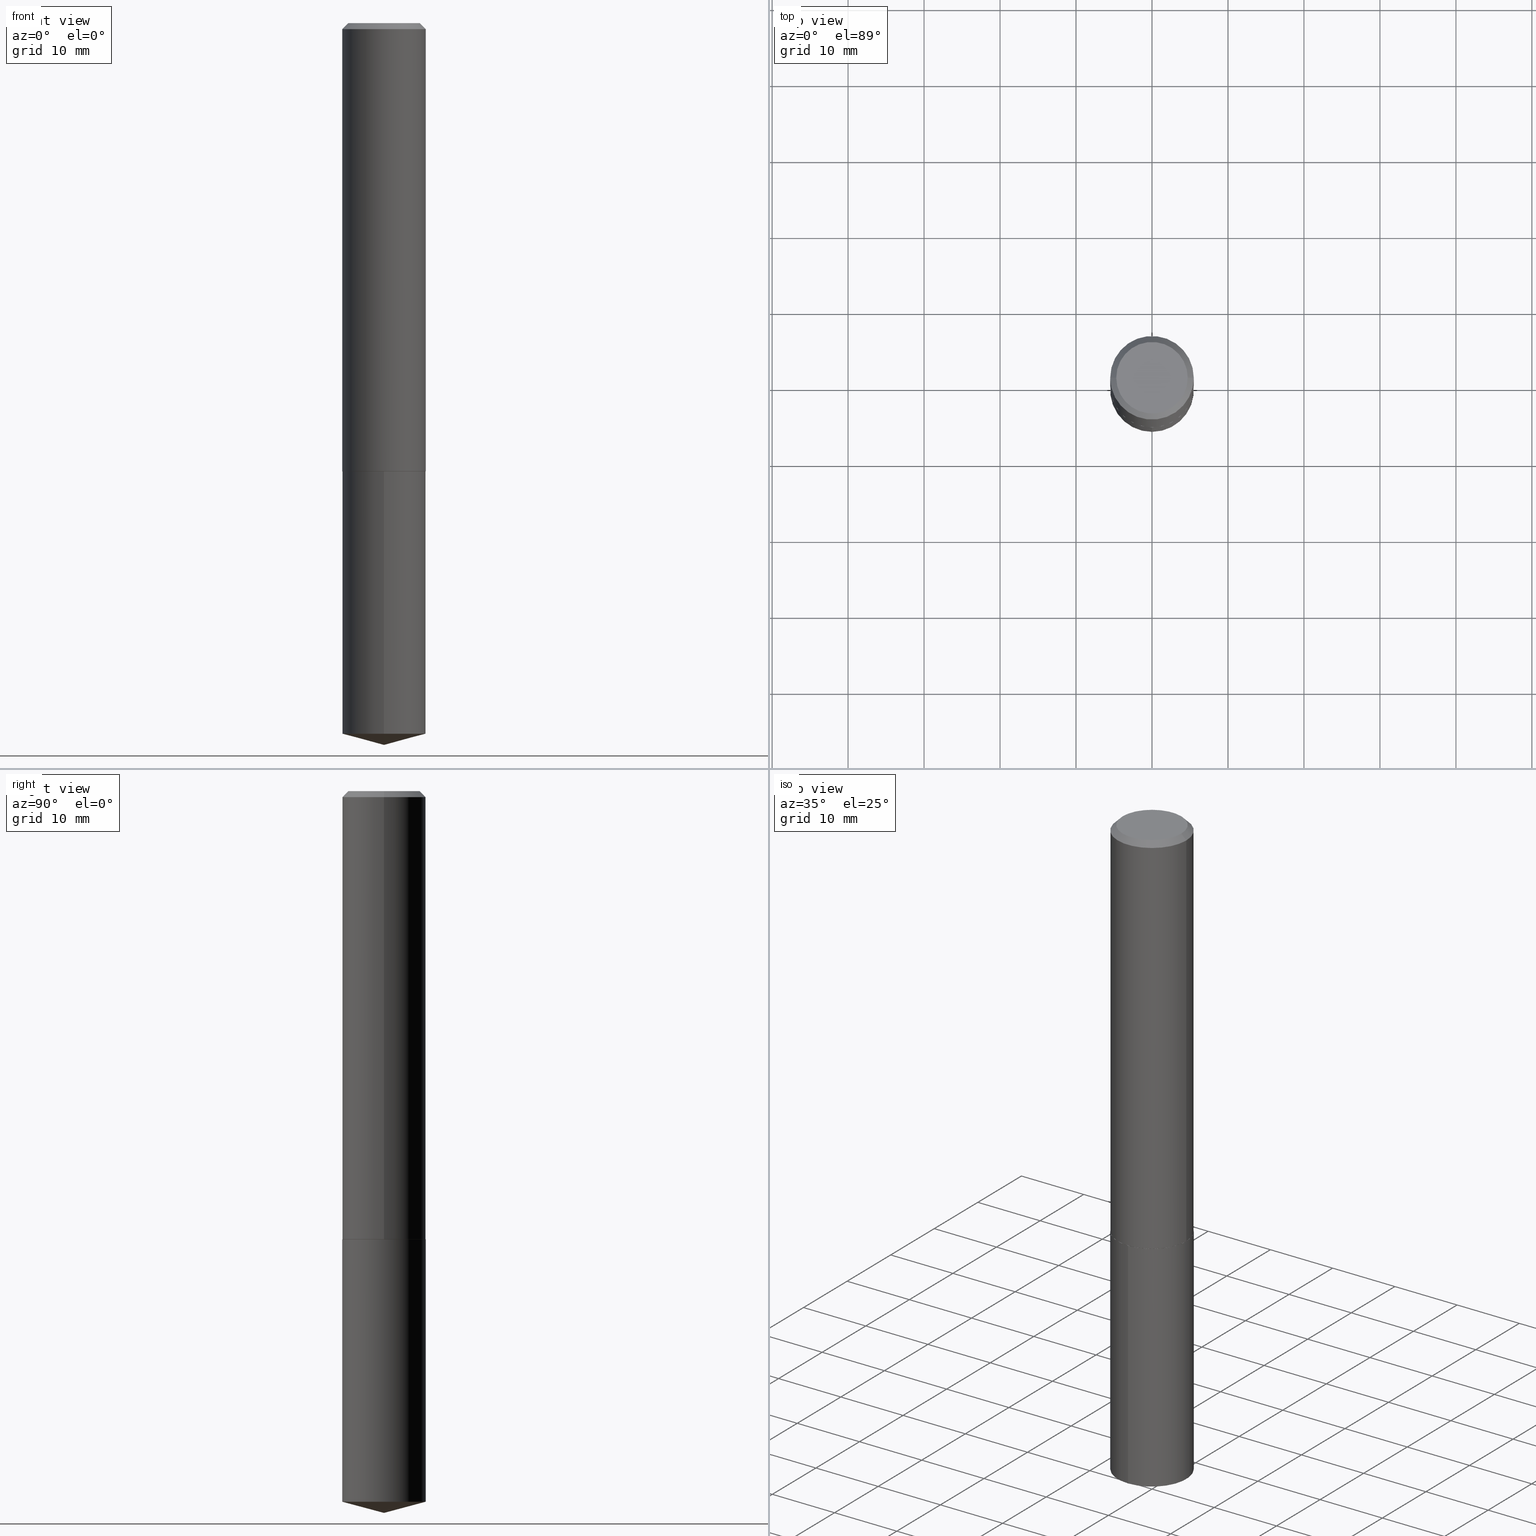
[diagram: canonical four-view strip — front | top / right | iso, engineering-drawing reading convention]
A machine part, canonical four-view strip (front | top / right | iso — engineering-drawing reading convention). The complete STEP part file that produces these views, byte-faithful:
ISO-10303-21;
HEADER;
FILE_DESCRIPTION (( 'STEP AP203' ),
    '1' );
FILE_NAME ('69042.STEP',
    '2024-04-23T14:36:10',
    ( '' ),
    ( '' ),
    'SwSTEP 2.0',
    'SolidWorks 2023',
    '' );
FILE_SCHEMA (( 'CONFIG_CONTROL_DESIGN' ));
ENDSEC;

DATA;
#1 =( NAMED_UNIT ( * ) SI_UNIT ( $, .STERADIAN. ) SOLID_ANGLE_UNIT ( ) );
#2 = VERTEX_POINT ( 'NONE', #130 ) ;
#3 = ADVANCED_FACE ( 'NONE', ( #308 ), #347, .F. ) ;
#4 = CYLINDRICAL_SURFACE ( 'NONE', #379, 0.2165500000000000203 ) ;
#5 = ORIENTED_EDGE ( 'NONE', *, *, #24, .F. ) ;
#6 = CLOSED_SHELL ( 'NONE', ( #263, #58, #289, #17, #227 ) ) ;
#7 = AXIS2_PLACEMENT_3D ( 'NONE', #134, #383, #108 ) ;
#8 = COORDINATED_UNIVERSAL_TIME_OFFSET ( 5, 0, .BEHIND. ) ;
#9 = ORIENTED_EDGE ( 'NONE', *, *, #22, .F. ) ;
#10 = PERSON_AND_ORGANIZATION ( #93, #179 ) ;
#11 = FACE_OUTER_BOUND ( 'NONE', #233, .T. ) ;
#12 = DATE_AND_TIME ( #44, #350 ) ;
#13 = CLOSED_SHELL ( 'NONE', ( #92, #319, #240, #163, #191, #66, #43, #3 ) ) ;
#14 = VERTEX_POINT ( 'NONE', #153 ) ;
#15 = APPROVAL_STATUS ( 'not_yet_approved' ) ;
#16 = DIRECTION ( 'NONE',  ( -2.445468806185136597E-29, 3.491481338843145583E-15, 1.000000000000000000 ) ) ;
#17 = ADVANCED_FACE ( 'NONE', ( #192 ), #374, .T. ) ;
#18 = ORIENTED_EDGE ( 'NONE', *, *, #22, .T. ) ;
#19 = CIRCLE ( 'NONE', #228, 0.2160500000000008247 ) ;
#20 = CIRCLE ( 'NONE', #147, 0.1852999999999999925 ) ;
#21 = DIRECTION ( 'NONE',  ( -2.445468806185136597E-29, 3.491481338843145583E-15, 1.000000000000000000 ) ) ;
#22 = EDGE_CURVE ( 'NONE', #359, #69, #214, .T. ) ;
#23 = DIRECTION ( 'NONE',  ( 1.000000000000000000, -6.982962677686269866E-15, 0.000000000000000000 ) ) ;
#24 = EDGE_CURVE ( 'NONE', #235, #65, #19, .T. ) ;
#25 = CARTESIAN_POINT ( 'NONE',  ( 5.680579489887453942E-29, -8.110362001998743924E-15, -2.322900000000000187 ) ) ;
#26 = ORIENTED_EDGE ( 'NONE', *, *, #253, .T. ) ;
#27 = VECTOR ( 'NONE', #322, 39.37007874015748143 ) ;
#28 = DIRECTION ( 'NONE',  ( -2.445468806185136597E-29, 3.491481338843145583E-15, 1.000000000000000000 ) ) ;
#29 = ORIENTED_EDGE ( 'NONE', *, *, #321, .T. ) ;
#30 = EDGE_CURVE ( 'NONE', #2, #232, #378, .T. ) ;
#31 = DIRECTION ( 'NONE',  ( -6.982962677686265133E-15, -1.000000000000000000, 2.523064413451178124E-15 ) ) ;
#32 = ORIENTED_EDGE ( 'NONE', *, *, #303, .F. ) ;
#33 = DIRECTION ( 'NONE',  ( 0.7071067811864267805, -2.468850131080992517E-15, 0.7071067811866682540 ) ) ;
#34 = ORIENTED_EDGE ( 'NONE', *, *, #380, .F. ) ;
#35 = CALENDAR_DATE ( 2024, 23, 4 ) ;
#36 = CIRCLE ( 'NONE', #231, 0.2160500000000008247 ) ;
#37 = ORIENTED_EDGE ( 'NONE', *, *, #348, .T. ) ;
#38 = SECURITY_CLASSIFICATION_LEVEL ( 'unclassified' ) ;
#39 = ORIENTED_EDGE ( 'NONE', *, *, #217, .T. ) ;
#40 = ORIENTED_EDGE ( 'NONE', *, *, #97, .F. ) ;
#41 = CARTESIAN_POINT ( 'NONE',  ( 5.680579489887453942E-29, -8.110362001998742346E-15, -2.322900000000000187 ) ) ;
#42 = VECTOR ( 'NONE', #389, 39.37007874015748143 ) ;
#43 = ADVANCED_FACE ( 'NONE', ( #311 ), #89, .T. ) ;
#44 = CALENDAR_DATE ( 2024, 23, 4 ) ;
#45 = CARTESIAN_POINT ( 'NONE',  ( 0.2160500000000008247, -9.619031088512866473E-15, -2.322900000000000187 ) ) ;
#46 = CARTESIAN_POINT ( 'NONE',  ( 5.679356755484362262E-29, -8.108616261329323209E-15, -2.322400000000000464 ) ) ;
#47 = APPLICATION_CONTEXT ( 'configuration controlled 3d designs of mechanical parts and assemblies' ) ;
#48 = CARTESIAN_POINT ( 'NONE',  ( 7.642090019328598283E-31, -1.091087918388489651E-16, -0.03125000000000019429 ) ) ;
#49 = FACE_OUTER_BOUND ( 'NONE', #239, .T. ) ;
#50 = DIRECTION ( 'NONE',  ( 1.000000000000000000, -6.982962677686269866E-15, 0.000000000000000000 ) ) ;
#51 = EDGE_CURVE ( 'NONE', #183, #341, #172, .T. ) ;
#52 = CARTESIAN_POINT ( 'NONE',  ( 1.538680294288586829E-15, 0.2165499999999918879, -2.322900000000001075 ) ) ;
#53 = AXIS2_PLACEMENT_3D ( 'NONE', #246, #276, #71 ) ;
#54 = CC_DESIGN_APPROVAL ( #351, ( #270 ) ) ;
#55 = LINE ( 'NONE', #114, #255 ) ;
#56 = DIRECTION ( 'NONE',  ( 1.000000000000000000, -6.982962677686262766E-15, 0.000000000000000000 ) ) ;
#57 = ORIENTED_EDGE ( 'NONE', *, *, #51, .F. ) ;
#58 = ADVANCED_FACE ( 'NONE', ( #315 ), #219, .T. ) ;
#59 =( NAMED_UNIT ( * ) PLANE_ANGLE_UNIT ( ) SI_UNIT ( $, .RADIAN. ) );
#60 = ORIENTED_EDGE ( 'NONE', *, *, #24, .T. ) ;
#61 = DIRECTION ( 'NONE',  ( 1.000000000000000000, -6.982962677686269866E-15, 0.000000000000000000 ) ) ;
#62 = CARTESIAN_POINT ( 'NONE',  ( 5.680579489887453942E-29, -8.110362001998743924E-15, -2.322900000000000187 ) ) ;
#63 = VERTEX_POINT ( 'NONE', #274 ) ;
#64 = MECHANICAL_CONTEXT ( 'NONE', #330, 'mechanical' ) ;
#65 = VERTEX_POINT ( 'NONE', #45 ) ;
#66 = ADVANCED_FACE ( 'NONE', ( #11 ), #241, .T. ) ;
#67 = CONICAL_SURFACE ( 'NONE', #133, 0.2165500000000002701, 0.7853981633972775267 ) ;
#68 = APPROVAL_DATE_TIME ( #157, #339 ) ;
#69 = VERTEX_POINT ( 'NONE', #369 ) ;
#70 = PERSON_AND_ORGANIZATION ( #93, #179 ) ;
#71 = DIRECTION ( 'NONE',  ( -6.982962677686266711E-15, -1.000000000000000000, 3.510303681827571802E-15 ) ) ;
#72 = PERSON_AND_ORGANIZATION ( #93, #179 ) ;
#73 = ORIENTED_EDGE ( 'NONE', *, *, #186, .F. ) ;
#74 = AXIS2_PLACEMENT_3D ( 'NONE', #121, #211, #156 ) ;
#75 = DIRECTION ( 'NONE',  ( -6.982962677686265133E-15, -1.000000000000000000, 3.784596620176766988E-15 ) ) ;
#76 = CIRCLE ( 'NONE', #82, 0.2165500000000000203 ) ;
#77 = DIRECTION ( 'NONE',  ( -1.000000000000000000, 6.982962677686265922E-15, -4.876176775795935793E-29 ) ) ;
#78 = CARTESIAN_POINT ( 'NONE',  ( 5.679356755484362262E-29, -8.108616261329323209E-15, -2.322400000000000464 ) ) ;
#79 = EDGE_CURVE ( 'NONE', #232, #101, #215, .T. ) ;
#80 = DIRECTION ( 'NONE',  ( -2.445468806185136877E-29, 3.491481338843145188E-15, 1.000000000000000000 ) ) ;
#81 = CARTESIAN_POINT ( 'NONE',  ( 0.2165500000000002701, -9.620776829182285610E-15, -2.322400000000000464 ) ) ;
#82 = AXIS2_PLACEMENT_3D ( 'NONE', #355, #176, #292 ) ;
#83 = CARTESIAN_POINT ( 'NONE',  ( 5.680579489887453942E-29, -8.110362001998742346E-15, -2.322900000000000187 ) ) ;
#84 = ORIENTED_EDGE ( 'NONE', *, *, #159, .T. ) ;
#85 = CC_DESIGN_PERSON_AND_ORGANIZATION_ASSIGNMENT ( #70, #155, ( #297 ) ) ;
#86 = VERTEX_POINT ( 'NONE', #320 ) ;
#87 = LINE ( 'NONE', #229, #42 ) ;
#88 = ORIENTED_EDGE ( 'NONE', *, *, #186, .T. ) ;
#89 = CONICAL_SURFACE ( 'NONE', #74, 0.2165500000000000203, 0.7853981633974453924 ) ;
#90 = CARTESIAN_POINT ( 'NONE',  ( 9.004812934248602542E-29, -1.285600773338433717E-14, -3.682175602379041734 ) ) ;
#91 = DIRECTION ( 'NONE',  ( -0.7071067811864267805, 7.493145998869918709E-15, 0.7071067811866682540 ) ) ;
#92 = ADVANCED_FACE ( 'NONE', ( #49 ), #260, .T. ) ;
#93 = PERSON ( 'UNSPECIFIED', 'UNSPECIFIED', 'UNSPECIFIED', ('UNSPECIFIED'), ('UNSPECIFIED'), ('UNSPECIFIED') ) ;
#94 = APPROVAL_STATUS ( 'not_yet_approved' ) ;
#95 = ORIENTED_EDGE ( 'NONE', *, *, #79, .T. ) ;
#96 = DIRECTION ( 'NONE',  ( -2.445591930395119820E-29, 3.491305017966654649E-15, 1.000000000000000000 ) ) ;
#97 = EDGE_CURVE ( 'NONE', #232, #2, #336, .T. ) ;
#98 = DATE_TIME_ROLE ( 'classification_date' ) ;
#99 = ORIENTED_EDGE ( 'NONE', *, *, #321, .F. ) ;
#100 = DIRECTION ( 'NONE',  ( 0.000000000000000000, 0.000000000000000000, 1.000000000000000000 ) ) ;
#101 = VERTEX_POINT ( 'NONE', #252 ) ;
#102 = AXIS2_PLACEMENT_3D ( 'NONE', #310, #16, #128 ) ;
#103 = EDGE_LOOP ( 'NONE', ( #113, #88 ) ) ;
#104 = CC_DESIGN_APPROVAL ( #137, ( #364 ) ) ;
#105 = LINE ( 'NONE', #222, #313 ) ;
#106 = CARTESIAN_POINT ( 'NONE',  ( -1.182960040634177403E-47, 1.688953421129294899E-33, 4.837354856632018279E-19 ) ) ;
#107 = FACE_OUTER_BOUND ( 'NONE', #299, .T. ) ;
#108 = DIRECTION ( 'NONE',  ( 6.982962677686265922E-15, 1.000000000000000000, -3.491305017966654254E-15 ) ) ;
#109 = DIRECTION ( 'NONE',  ( -2.445591930395119820E-29, 3.491305017966654649E-15, 1.000000000000000000 ) ) ;
#110 = EDGE_LOOP ( 'NONE', ( #365, #390, #386, #57 ) ) ;
#111 = CIRCLE ( 'NONE', #283, 0.2165500000000000203 ) ;
#112 = DIRECTION ( 'NONE',  ( -2.445591930395119820E-29, 3.491305017966654254E-15, 1.000000000000000000 ) ) ;
#113 = ORIENTED_EDGE ( 'NONE', *, *, #124, .T. ) ;
#114 = CARTESIAN_POINT ( 'NONE',  ( 9.146430927609087428E-29, -1.305899817972688268E-14, -3.740200000000000191 ) ) ;
#115 = ORIENTED_EDGE ( 'NONE', *, *, #360, .F. ) ;
#116 = LINE ( 'NONE', #301, #213 ) ;
#117 = ORIENTED_EDGE ( 'NONE', *, *, #167, .F. ) ;
#118 = APPROVAL_PERSON_ORGANIZATION ( #342, #339, #271 ) ;
#119 = CC_DESIGN_PERSON_AND_ORGANIZATION_ASSIGNMENT ( #182, #340, ( #270 ) ) ;
#120 =( LENGTH_UNIT ( ) NAMED_UNIT ( * ) SI_UNIT ( $, .METRE. ) );
#121 = CARTESIAN_POINT ( 'NONE',  ( 7.642090019328598283E-31, -1.091087918388489651E-16, -0.03125000000000019429 ) ) ;
#122 = DATE_AND_TIME ( #307, #269 ) ;
#123 = ORIENTED_EDGE ( 'NONE', *, *, #150, .T. ) ;
#124 = EDGE_CURVE ( 'NONE', #86, #287, #278, .T. ) ;
#125 = CC_DESIGN_APPROVAL ( #339, ( #195 ) ) ;
#126 = COORDINATED_UNIVERSAL_TIME_OFFSET ( 5, 0, .BEHIND. ) ;
#127 = DIRECTION ( 'NONE',  ( 1.000000000000000000, -6.982962677686266711E-15, 4.876176775795936353E-29 ) ) ;
#128 = DIRECTION ( 'NONE',  ( 1.000000000000000000, -6.982962677686269866E-15, 0.000000000000000000 ) ) ;
#129 = COORDINATED_UNIVERSAL_TIME_OFFSET ( 5, 0, .BEHIND. ) ;
#130 = CARTESIAN_POINT ( 'NONE',  ( -0.2165500000000002701, -6.569935967040822957E-15, -2.322400000000000464 ) ) ;
#131 = MANIFOLD_SOLID_BREP ( 'Body-Move/Copy2[1]', #6 ) ;
#132 = DIRECTION ( 'NONE',  ( 2.445468806185136597E-29, -3.491481338843145583E-15, -1.000000000000000000 ) ) ;
#133 = AXIS2_PLACEMENT_3D ( 'NONE', #46, #28, #61 ) ;
#134 = CARTESIAN_POINT ( 'NONE',  ( 5.680579489887453942E-29, -8.110362001998743924E-15, -2.322900000000000187 ) ) ;
#135 = MANIFOLD_SOLID_BREP ( 'Body-Move/Copy2[2]', #13 ) ;
#136 = DIRECTION ( 'NONE',  ( -2.445468806185136597E-29, 3.491481338843145583E-15, 1.000000000000000000 ) ) ;
#137 = APPROVAL ( #247, 'UNSPECIFIED' ) ;
#138 = FACE_OUTER_BOUND ( 'NONE', #139, .T. ) ;
#139 = EDGE_LOOP ( 'NONE', ( #9, #29, #115 ) ) ;
#140 = VECTOR ( 'NONE', #112, 39.37007874015748143 ) ;
#141 = CYLINDRICAL_SURFACE ( 'NONE', #329, 0.2165500000000001590 ) ;
#142 = ORIENTED_EDGE ( 'NONE', *, *, #217, .F. ) ;
#143 = FACE_OUTER_BOUND ( 'NONE', #371, .T. ) ;
#144 = ORIENTED_EDGE ( 'NONE', *, *, #30, .F. ) ;
#145 = CC_DESIGN_DATE_AND_TIME_ASSIGNMENT ( #216, #344, ( #270 ) ) ;
#146 = CARTESIAN_POINT ( 'NONE',  ( 0.1852999999999999925, -1.432999956121669510E-15, 4.837354856727365293E-19 ) ) ;
#147 = AXIS2_PLACEMENT_3D ( 'NONE', #196, #21, #226 ) ;
#148 = CALENDAR_DATE ( 2024, 23, 4 ) ;
#149 = DIRECTION ( 'NONE',  ( 6.863315791527699781E-15, 0.9659258262890704216, 0.2588190451025125793 ) ) ;
#150 = EDGE_CURVE ( 'NONE', #14, #101, #166, .T. ) ;
#151 = ORIENTED_EDGE ( 'NONE', *, *, #30, .T. ) ;
#152 = APPROVAL_DATE_TIME ( #209, #351 ) ;
#153 = CARTESIAN_POINT ( 'NONE',  ( -0.2165500000000000203, -2.570182232295586298E-15, -0.03125000000000019429 ) ) ;
#154 = AXIS2_PLACEMENT_3D ( 'NONE', #382, #223, #352 ) ;
#155 = PERSON_AND_ORGANIZATION_ROLE ( 'design_owner' ) ;
#156 = DIRECTION ( 'NONE',  ( -1.000000000000000000, 6.982962677686266711E-15, 0.000000000000000000 ) ) ;
#157 = DATE_AND_TIME ( #273, #295 ) ;
#158 = CARTESIAN_POINT ( 'NONE',  ( 0.000000000000000000, 0.000000000000000000, 0.000000000000000000 ) ) ;
#159 = EDGE_CURVE ( 'NONE', #69, #183, #288, .T. ) ;
#160 = CONICAL_SURFACE ( 'NONE', #381, 0.2165500000000002701, 0.7853981633972775267 ) ;
#161 = DIRECTION ( 'NONE',  ( -1.000000000000000000, 6.982962677686266711E-15, 0.000000000000000000 ) ) ;
#162 = FACE_OUTER_BOUND ( 'NONE', #361, .T. ) ;
#163 = ADVANCED_FACE ( 'NONE', ( #107 ), #250, .F. ) ;
#164 = DIRECTION ( 'NONE',  ( 1.000000000000000000, -6.982962677686266711E-15, 4.876177403239504402E-29 ) ) ;
#165 = CARTESIAN_POINT ( 'NONE',  ( -0.2165500000000001590, 1.538680294288498082E-15, -1.065195393794700623E-29 ) ) ;
#166 = CIRCLE ( 'NONE', #154, 0.2165500000000000203 ) ;
#167 = EDGE_CURVE ( 'NONE', #86, #14, #105, .T. ) ;
#168 = CARTESIAN_POINT ( 'NONE',  ( -0.2165500000000002701, -6.569935967040822957E-15, -2.322400000000000464 ) ) ;
#169 = EDGE_LOOP ( 'NONE', ( #99, #18, #181 ) ) ;
#170 = DIRECTION ( 'NONE',  ( -6.982962677686266711E-15, -1.000000000000000000, 3.510303681827571802E-15 ) ) ;
#171 = ORIENTED_EDGE ( 'NONE', *, *, #376, .T. ) ;
#172 = CIRCLE ( 'NONE', #312, 0.2165500000000000203 ) ;
#173 = CC_DESIGN_SECURITY_CLASSIFICATION ( #364, ( #195 ) ) ;
#174 = CARTESIAN_POINT ( 'NONE',  ( 0.000000000000000000, 0.000000000000000000, 0.000000000000000000 ) ) ;
#175 = ORIENTED_EDGE ( 'NONE', *, *, #331, .T. ) ;
#176 = DIRECTION ( 'NONE',  ( -2.445468806185136597E-29, 3.491481338843145583E-15, 1.000000000000000000 ) ) ;
#177 = APPROVAL_ROLE ( '' ) ;
#178 = ORIENTED_EDGE ( 'NONE', *, *, #385, .T. ) ;
#179 = ORGANIZATION ( 'UNSPECIFIED', 'UNSPECIFIED', '' ) ;
#180 = PERSON_AND_ORGANIZATION_ROLE ( 'design_supplier' ) ;
#181 = ORIENTED_EDGE ( 'NONE', *, *, #331, .F. ) ;
#182 = PERSON_AND_ORGANIZATION ( #93, #179 ) ;
#183 = VERTEX_POINT ( 'NONE', #52 ) ;
#184 = APPROVAL_ROLE ( '' ) ;
#185 = CARTESIAN_POINT ( 'NONE',  ( 0.2165500000000001590, -1.512160567852962203E-15, 1.055936080798610736E-29 ) ) ;
#186 = EDGE_CURVE ( 'NONE', #287, #86, #20, .T. ) ;
#187 = AXIS2_PLACEMENT_3D ( 'NONE', #48, #132, #161 ) ;
#188 = AXIS2_PLACEMENT_3D ( 'NONE', #353, #349, #317 ) ;
#189 = PERSON_AND_ORGANIZATION_ROLE ( 'creator' ) ;
#190 = DIRECTION ( 'NONE',  ( -6.982962677686265133E-15, -1.000000000000000000, 3.784596620176766988E-15 ) ) ;
#191 = ADVANCED_FACE ( 'NONE', ( #162 ), #160, .T. ) ;
#192 = FACE_OUTER_BOUND ( 'NONE', #110, .T. ) ;
#193 = DIRECTION ( 'NONE',  ( -2.445468806185136877E-29, 3.491481338843145188E-15, 1.000000000000000000 ) ) ;
#194 = VECTOR ( 'NONE', #149, 39.37007874015749564 ) ;
#195 = PRODUCT_DEFINITION_FORMATION_WITH_SPECIFIED_SOURCE ( 'ANY', '', #297, .NOT_KNOWN. ) ;
#196 = CARTESIAN_POINT ( 'NONE',  ( -1.182960040634177403E-47, 1.688953421129294899E-33, 4.837354856632018279E-19 ) ) ;
#197 = DIRECTION ( 'NONE',  ( -2.445468806185136597E-29, 3.491481338843145583E-15, 1.000000000000000000 ) ) ;
#198 = FACE_OUTER_BOUND ( 'NONE', #367, .T. ) ;
#199 = VECTOR ( 'NONE', #91, 39.37007874015748143 ) ;
#200 = CC_DESIGN_PERSON_AND_ORGANIZATION_ASSIGNMENT ( #243, #180, ( #195 ) ) ;
#201 = LINE ( 'NONE', #168, #199 ) ;
#202 = ORIENTED_EDGE ( 'NONE', *, *, #167, .T. ) ;
#203 = FACE_OUTER_BOUND ( 'NONE', #208, .T. ) ;
#204 = PRODUCT_DEFINITION_SHAPE ( 'NONE', 'NONE',  #270 ) ;
#205 = CC_DESIGN_DATE_AND_TIME_ASSIGNMENT ( #122, #98, ( #364 ) ) ;
#206 = DIRECTION ( 'NONE',  ( -6.982962677686265133E-15, -1.000000000000000000, 3.784596620176766988E-15 ) ) ;
#207 = DIRECTION ( 'NONE',  ( -6.982962677686265133E-15, -1.000000000000000000, 2.523064413451178124E-15 ) ) ;
#208 = EDGE_LOOP ( 'NONE', ( #175, #84, #335, #34 ) ) ;
#209 = DATE_AND_TIME ( #35, #290 ) ;
#210 = DIRECTION ( 'NONE',  ( 1.000000000000000000, 0.000000000000000000, 0.000000000000000000 ) ) ;
#211 = DIRECTION ( 'NONE',  ( 2.445468806185136597E-29, -3.491481338843145583E-15, -1.000000000000000000 ) ) ;
#212 = AXIS2_PLACEMENT_3D ( 'NONE', #158, #248, #127 ) ;
#213 = VECTOR ( 'NONE', #33, 39.37007874015748143 ) ;
#214 = LINE ( 'NONE', #316, #194 ) ;
#215 = LINE ( 'NONE', #185, #282 ) ;
#216 = DATE_AND_TIME ( #148, #306 ) ;
#217 = EDGE_CURVE ( 'NONE', #2, #14, #256, .T. ) ;
#218 = CARTESIAN_POINT ( 'NONE',  ( 5.680579489887453942E-29, -8.110362001998743924E-15, -2.322900000000000187 ) ) ;
#219 = CONICAL_SURFACE ( 'NONE', #53, 146.9311341562578832, 1.308996938995752091 ) ;
#220 = CONICAL_SURFACE ( 'NONE', #388, 146.9311341562578832, 1.308996938995752091 ) ;
#221 = DIRECTION ( 'NONE',  ( 2.438088387897960049E-29, -3.491481338843145188E-15, -1.000000000000000000 ) ) ;
#222 = CARTESIAN_POINT ( 'NONE',  ( -0.2165500000000000203, 1.403051776014112116E-15, -0.03125000000000019429 ) ) ;
#223 = DIRECTION ( 'NONE',  ( -2.445468806185136597E-29, 3.491481338843145583E-15, 1.000000000000000000 ) ) ;
#224 = CARTESIAN_POINT ( 'NONE',  ( 1.538680294288553500E-15, 0.2165499999999918879, -2.322900000000001075 ) ) ;
#225 = DIRECTION ( 'NONE',  ( -0.7071067811865454633, 2.468850131082235367E-15, -0.7071067811865495711 ) ) ;
#226 = DIRECTION ( 'NONE',  ( 1.000000000000000000, -6.982962677686266711E-15, 4.876177403239504402E-29 ) ) ;
#227 = ADVANCED_FACE ( 'NONE', ( #291 ), #257, .F. ) ;
#228 = AXIS2_PLACEMENT_3D ( 'NONE', #41, #244, #280 ) ;
#229 = CARTESIAN_POINT ( 'NONE',  ( 0.2165500000000000203, -1.594749633256274438E-15, -0.03125000000000019429 ) ) ;
#230 = AXIS2_PLACEMENT_3D ( 'NONE', #106, #197, #164 ) ;
#231 = AXIS2_PLACEMENT_3D ( 'NONE', #83, #268, #56 ) ;
#232 = VERTEX_POINT ( 'NONE', #81 ) ;
#233 = EDGE_LOOP ( 'NONE', ( #142, #151, #95, #296 ) ) ;
#234 = CC_DESIGN_PERSON_AND_ORGANIZATION_ASSIGNMENT ( #245, #189, ( #195 ) ) ;
#235 = VERTEX_POINT ( 'NONE', #251 ) ;
#236 = DIRECTION ( 'NONE',  ( -2.445591930395119820E-29, 3.491305017966654649E-15, 1.000000000000000000 ) ) ;
#237 = AXIS2_PLACEMENT_3D ( 'NONE', #90, #109, #207 ) ;
#238 = CARTESIAN_POINT ( 'NONE',  ( 9.004812934248602542E-29, -1.285600773338433717E-14, -3.682175602379041734 ) ) ;
#239 = EDGE_LOOP ( 'NONE', ( #73, #343, #332, #117 ) ) ;
#240 = ADVANCED_FACE ( 'NONE', ( #198 ), #67, .T. ) ;
#241 = CYLINDRICAL_SURFACE ( 'NONE', #212, 0.2165500000000001590 ) ;
#242 = CIRCLE ( 'NONE', #323, 0.2165500000000000203 ) ;
#243 = PERSON_AND_ORGANIZATION ( #93, #179 ) ;
#244 = DIRECTION ( 'NONE',  ( -2.445468806185136597E-29, 3.491481338843145583E-15, 1.000000000000000000 ) ) ;
#245 = PERSON_AND_ORGANIZATION ( #93, #179 ) ;
#246 = CARTESIAN_POINT ( 'NONE',  ( -8.713642993311313443E-28, 1.243943648592912499E-13, 35.62987874015747991 ) ) ;
#247 = APPROVAL_STATUS ( 'not_yet_approved' ) ;
#248 = DIRECTION ( 'NONE',  ( -2.445468806185136597E-29, 3.491481338843145583E-15, 1.000000000000000000 ) ) ;
#249 = CIRCLE ( 'NONE', #237, 0.2165500000000000203 ) ;
#250 = PLANE ( 'NONE',  #188 ) ;
#251 = CARTESIAN_POINT ( 'NONE',  ( -0.2160500000000008247, -6.572585194214931792E-15, -2.322900000000000187 ) ) ;
#252 = CARTESIAN_POINT ( 'NONE',  ( 0.2165500000000000203, -1.621269359691810318E-15, -0.03125000000000019429 ) ) ;
#253 = EDGE_CURVE ( 'NONE', #341, #183, #111, .T. ) ;
#254 = AXIS2_PLACEMENT_3D ( 'NONE', #218, #96, #75 ) ;
#255 = VECTOR ( 'NONE', #294, 39.37007874015747433 ) ;
#256 = LINE ( 'NONE', #165, #262 ) ;
#257 = PLANE ( 'NONE',  #7 ) ;
#258 = DIRECTION ( 'NONE',  ( -2.445468806185136597E-29, 3.491481338843145583E-15, 1.000000000000000000 ) ) ;
#259 = ORIENTED_EDGE ( 'NONE', *, *, #124, .F. ) ;
#260 = CONICAL_SURFACE ( 'NONE', #187, 0.2165500000000000203, 0.7853981633974453924 ) ;
#261 = CARTESIAN_POINT ( 'NONE',  ( -8.713642993311313443E-28, 1.243943648592912499E-13, 35.62987874015747991 ) ) ;
#262 = VECTOR ( 'NONE', #193, 39.37007874015748143 ) ;
#263 = ADVANCED_FACE ( 'NONE', ( #203 ), #4, .T. ) ;
#264 =( CONVERSION_BASED_UNIT ( 'INCH', #324 ) LENGTH_UNIT ( ) NAMED_UNIT ( #357 ) );
#265 = UNCERTAINTY_MEASURE_WITH_UNIT (LENGTH_MEASURE( 1.000000000000000082E-05 ), #264, 'distance_accuracy_value', 'NONE');
#266 = DIRECTION ( 'NONE',  ( -2.445591930395119820E-29, 3.491305017966654649E-15, 1.000000000000000000 ) ) ;
#267 = EDGE_LOOP ( 'NONE', ( #377, #259, #202, #123 ) ) ;
#268 = DIRECTION ( 'NONE',  ( -2.445468806185136597E-29, 3.491481338843145583E-15, 1.000000000000000000 ) ) ;
#269 = LOCAL_TIME ( 10, 36, 10.00000000000000000, #8 ) ;
#270 = PRODUCT_DEFINITION ( 'UNKNOWN', '', #195, #300 ) ;
#271 = APPROVAL_ROLE ( '' ) ;
#272 = CARTESIAN_POINT ( 'NONE',  ( -5.914800203170887017E-48, 8.444767105646474497E-34, 2.418677428316009140E-19 ) ) ;
#273 = CALENDAR_DATE ( 2024, 23, 4 ) ;
#274 = CARTESIAN_POINT ( 'NONE',  ( -1.512160567852871090E-15, -0.2165500000000128711, -3.682175602379041290 ) ) ;
#275 = APPLICATION_PROTOCOL_DEFINITION ( 'international standard', 'config_control_design', 1994, #47 ) ;
#276 = DIRECTION ( 'NONE',  ( -2.445591930395119820E-29, 3.491305017966654649E-15, 1.000000000000000000 ) ) ;
#277 = CC_DESIGN_PERSON_AND_ORGANIZATION_ASSIGNMENT ( #72, #314, ( #364 ) ) ;
#278 = CIRCLE ( 'NONE', #230, 0.1852999999999999925 ) ;
#279 = APPROVAL_DATE_TIME ( #12, #137 ) ;
#280 = DIRECTION ( 'NONE',  ( 1.000000000000000000, -6.982962677686262766E-15, 0.000000000000000000 ) ) ;
#281 = ORIENTED_EDGE ( 'NONE', *, *, #385, .F. ) ;
#282 = VECTOR ( 'NONE', #80, 39.37007874015748143 ) ;
#283 = AXIS2_PLACEMENT_3D ( 'NONE', #62, #266, #206 ) ;
#284 = CARTESIAN_POINT ( 'NONE',  ( 5.679356755484362262E-29, -8.108616261329323209E-15, -2.322400000000000464 ) ) ;
#285 = ADVANCED_BREP_SHAPE_REPRESENTATION ( '69042', ( #131, #135, #318 ), #354 ) ;
#286 = DIRECTION ( 'NONE',  ( -2.445468806185136597E-29, 3.491481338843145583E-15, 1.000000000000000000 ) ) ;
#287 = VERTEX_POINT ( 'NONE', #146 ) ;
#288 = LINE ( 'NONE', #224, #27 ) ;
#289 = ADVANCED_FACE ( 'NONE', ( #138 ), #220, .T. ) ;
#290 = LOCAL_TIME ( 10, 36, 10.00000000000000000, #126 ) ;
#291 = FACE_OUTER_BOUND ( 'NONE', #326, .T. ) ;
#292 = DIRECTION ( 'NONE',  ( 1.000000000000000000, -6.982962677686266711E-15, 0.000000000000000000 ) ) ;
#293 = ORIENTED_EDGE ( 'NONE', *, *, #97, .T. ) ;
#294 = DIRECTION ( 'NONE',  ( -6.745023994389847810E-15, -0.9659258262890687563, 0.2588190451025194627 ) ) ;
#295 = LOCAL_TIME ( 10, 36, 10.00000000000000000, #129 ) ;
#296 = ORIENTED_EDGE ( 'NONE', *, *, #150, .F. ) ;
#297 = PRODUCT ( '69042', '69042', '', ( #64 ) ) ;
#298 = DIRECTION ( 'NONE',  ( -6.982962677686265133E-15, -1.000000000000000000, 3.784596620176766988E-15 ) ) ;
#299 = EDGE_LOOP ( 'NONE', ( #281, #5 ) ) ;
#300 = DESIGN_CONTEXT ( 'detailed design', #47, 'design' ) ;
#301 = CARTESIAN_POINT ( 'NONE',  ( 0.2165500000000002701, -9.620776829182285610E-15, -2.322400000000000464 ) ) ;
#302 = ORIENTED_EDGE ( 'NONE', *, *, #376, .F. ) ;
#303 = EDGE_CURVE ( 'NONE', #101, #14, #76, .T. ) ;
#304 = APPLICATION_PROTOCOL_DEFINITION ( 'international standard', 'config_control_design', 1994, #330 ) ;
#305 = ORIENTED_EDGE ( 'NONE', *, *, #348, .F. ) ;
#306 = LOCAL_TIME ( 10, 36, 10.00000000000000000, #372 ) ;
#307 = CALENDAR_DATE ( 2024, 23, 4 ) ;
#308 = FACE_OUTER_BOUND ( 'NONE', #103, .T. ) ;
#309 = PERSON_AND_ORGANIZATION ( #93, #179 ) ;
#310 = CARTESIAN_POINT ( 'NONE',  ( 5.679356755484362262E-29, -8.108616261329323209E-15, -2.322400000000000464 ) ) ;
#311 = FACE_OUTER_BOUND ( 'NONE', #267, .T. ) ;
#312 = AXIS2_PLACEMENT_3D ( 'NONE', #337, #345, #190 ) ;
#313 = VECTOR ( 'NONE', #225, 39.37007874015748143 ) ;
#314 = PERSON_AND_ORGANIZATION_ROLE ( 'classification_officer' ) ;
#315 = FACE_OUTER_BOUND ( 'NONE', #169, .T. ) ;
#316 = CARTESIAN_POINT ( 'NONE',  ( 9.147007953920311229E-29, -1.305817902819888352E-14, -3.740200000000000191 ) ) ;
#317 = DIRECTION ( 'NONE',  ( 1.000000000000000000, -6.982962677686265922E-15, 4.876176775795935793E-29 ) ) ;
#318 = AXIS2_PLACEMENT_3D ( 'NONE', #366, #100, #210 ) ;
#319 = ADVANCED_FACE ( 'NONE', ( #143 ), #141, .T. ) ;
#320 = CARTESIAN_POINT ( 'NONE',  ( -0.1852999999999999925, 1.348497380094688552E-15, 4.837354856539620827E-19 ) ) ;
#321 = EDGE_CURVE ( 'NONE', #359, #63, #55, .T. ) ;
#322 = DIRECTION ( 'NONE',  ( -2.445591930395119820E-29, 3.491305017966654254E-15, 1.000000000000000000 ) ) ;
#323 = AXIS2_PLACEMENT_3D ( 'NONE', #238, #328, #31 ) ;
#324 = LENGTH_MEASURE_WITH_UNIT ( LENGTH_MEASURE( 0.02539999999999999897 ), #120 );
#325 = CARTESIAN_POINT ( 'NONE',  ( 9.147002938063828443E-29, -1.305817902819888352E-14, -3.740200000000000191 ) ) ;
#326 = EDGE_LOOP ( 'NONE', ( #26, #334 ) ) ;
#327 = DIRECTION ( 'NONE',  ( 1.000000000000000000, -6.982962677686266711E-15, 4.876176775795936353E-29 ) ) ;
#328 = DIRECTION ( 'NONE',  ( -2.445591930395119820E-29, 3.491305017966654649E-15, 1.000000000000000000 ) ) ;
#329 = AXIS2_PLACEMENT_3D ( 'NONE', #174, #258, #327 ) ;
#330 = APPLICATION_CONTEXT ( 'configuration controlled 3d designs of mechanical parts and assemblies' ) ;
#331 = EDGE_CURVE ( 'NONE', #63, #69, #242, .T. ) ;
#332 = ORIENTED_EDGE ( 'NONE', *, *, #303, .T. ) ;
#333 = CARTESIAN_POINT ( 'NONE',  ( -1.512160567852904222E-15, -0.2165500000000081249, -2.322899999999999299 ) ) ;
#334 = ORIENTED_EDGE ( 'NONE', *, *, #51, .T. ) ;
#335 = ORIENTED_EDGE ( 'NONE', *, *, #253, .F. ) ;
#336 = CIRCLE ( 'NONE', #338, 0.2165500000000002701 ) ;
#337 = CARTESIAN_POINT ( 'NONE',  ( 5.680579489887453942E-29, -8.110362001998743924E-15, -2.322900000000000187 ) ) ;
#338 = AXIS2_PLACEMENT_3D ( 'NONE', #284, #136, #50 ) ;
#339 = APPROVAL ( #15, 'UNSPECIFIED' ) ;
#340 = PERSON_AND_ORGANIZATION_ROLE ( 'creator' ) ;
#341 = VERTEX_POINT ( 'NONE', #384 ) ;
#342 = PERSON_AND_ORGANIZATION ( #93, #179 ) ;
#343 = ORIENTED_EDGE ( 'NONE', *, *, #373, .T. ) ;
#344 = DATE_TIME_ROLE ( 'creation_date' ) ;
#345 = DIRECTION ( 'NONE',  ( -2.445591930395119820E-29, 3.491305017966654649E-15, 1.000000000000000000 ) ) ;
#346 = APPROVAL_PERSON_ORGANIZATION ( #309, #137, #184 ) ;
#347 = PLANE ( 'NONE',  #387 ) ;
#348 = EDGE_CURVE ( 'NONE', #235, #2, #201, .T. ) ;
#349 = DIRECTION ( 'NONE',  ( -2.438088387897960049E-29, 3.491481338843145188E-15, 1.000000000000000000 ) ) ;
#350 = LOCAL_TIME ( 10, 36, 10.00000000000000000, #368 ) ;
#351 = APPROVAL ( #94, 'UNSPECIFIED' ) ;
#352 = DIRECTION ( 'NONE',  ( 1.000000000000000000, -6.982962677686266711E-15, 0.000000000000000000 ) ) ;
#353 = CARTESIAN_POINT ( 'NONE',  ( 7.731611766031959838E-29, -5.173167045052337120E-15, -2.322900000000000187 ) ) ;
#354 =( GEOMETRIC_REPRESENTATION_CONTEXT ( 3 ) GLOBAL_UNCERTAINTY_ASSIGNED_CONTEXT ( ( #265 ) ) GLOBAL_UNIT_ASSIGNED_CONTEXT ( ( #264, #59, #1 ) ) REPRESENTATION_CONTEXT ( 'NONE', 'WORKASPACE' ) );
#355 = CARTESIAN_POINT ( 'NONE',  ( 7.642090019328598283E-31, -1.091087918388489651E-16, -0.03125000000000019429 ) ) ;
#356 = ORIENTED_EDGE ( 'NONE', *, *, #79, .F. ) ;
#357 = DIMENSIONAL_EXPONENTS ( 1.000000000000000000, 0.000000000000000000, 0.000000000000000000, 0.000000000000000000, 0.000000000000000000, 0.000000000000000000, 0.000000000000000000 ) ;
#358 = DIRECTION ( 'NONE',  ( -2.445591930395119820E-29, 3.491305017966654649E-15, 1.000000000000000000 ) ) ;
#359 = VERTEX_POINT ( 'NONE', #325 ) ;
#360 = EDGE_CURVE ( 'NONE', #69, #63, #249, .T. ) ;
#361 = EDGE_LOOP ( 'NONE', ( #305, #60, #171, #144 ) ) ;
#362 = PRODUCT_RELATED_PRODUCT_CATEGORY ( 'detail', '', ( #297 ) ) ;
#363 = LINE ( 'NONE', #333, #140 ) ;
#364 = SECURITY_CLASSIFICATION ( '', '', #38 ) ;
#365 = ORIENTED_EDGE ( 'NONE', *, *, #159, .F. ) ;
#366 = CARTESIAN_POINT ( 'NONE',  ( 0.000000000000000000, 0.000000000000000000, 0.000000000000000000 ) ) ;
#367 = EDGE_LOOP ( 'NONE', ( #178, #37, #40, #302 ) ) ;
#368 = COORDINATED_UNIVERSAL_TIME_OFFSET ( 5, 0, .BEHIND. ) ;
#369 = CARTESIAN_POINT ( 'NONE',  ( 1.538680294288587027E-15, 0.2165499999999871972, -3.682175602379042179 ) ) ;
#370 = APPROVAL_PERSON_ORGANIZATION ( #10, #351, #177 ) ;
#371 = EDGE_LOOP ( 'NONE', ( #293, #39, #32, #356 ) ) ;
#372 = COORDINATED_UNIVERSAL_TIME_OFFSET ( 5, 0, .BEHIND. ) ;
#373 = EDGE_CURVE ( 'NONE', #287, #101, #87, .T. ) ;
#374 = CYLINDRICAL_SURFACE ( 'NONE', #254, 0.2165500000000000203 ) ;
#375 = SHAPE_DEFINITION_REPRESENTATION ( #204, #285 ) ;
#376 = EDGE_CURVE ( 'NONE', #65, #232, #116, .T. ) ;
#377 = ORIENTED_EDGE ( 'NONE', *, *, #373, .F. ) ;
#378 = CIRCLE ( 'NONE', #102, 0.2165500000000002701 ) ;
#379 = AXIS2_PLACEMENT_3D ( 'NONE', #25, #358, #298 ) ;
#380 = EDGE_CURVE ( 'NONE', #63, #341, #363, .T. ) ;
#381 = AXIS2_PLACEMENT_3D ( 'NONE', #78, #286, #23 ) ;
#382 = CARTESIAN_POINT ( 'NONE',  ( 7.642090019328598283E-31, -1.091087918388489651E-16, -0.03125000000000019429 ) ) ;
#383 = DIRECTION ( 'NONE',  ( 2.445591930395119820E-29, -3.491305017966654254E-15, -1.000000000000000000 ) ) ;
#384 = CARTESIAN_POINT ( 'NONE',  ( -1.512160567852904222E-15, -0.2165500000000081249, -2.322899999999999299 ) ) ;
#385 = EDGE_CURVE ( 'NONE', #65, #235, #36, .T. ) ;
#386 = ORIENTED_EDGE ( 'NONE', *, *, #380, .T. ) ;
#387 = AXIS2_PLACEMENT_3D ( 'NONE', #272, #221, #77 ) ;
#388 = AXIS2_PLACEMENT_3D ( 'NONE', #261, #236, #170 ) ;
#389 = DIRECTION ( 'NONE',  ( 0.7071067811865454633, -7.319954787623248157E-15, -0.7071067811865495711 ) ) ;
#390 = ORIENTED_EDGE ( 'NONE', *, *, #360, .T. ) ;
ENDSEC;
END-ISO-10303-21;
